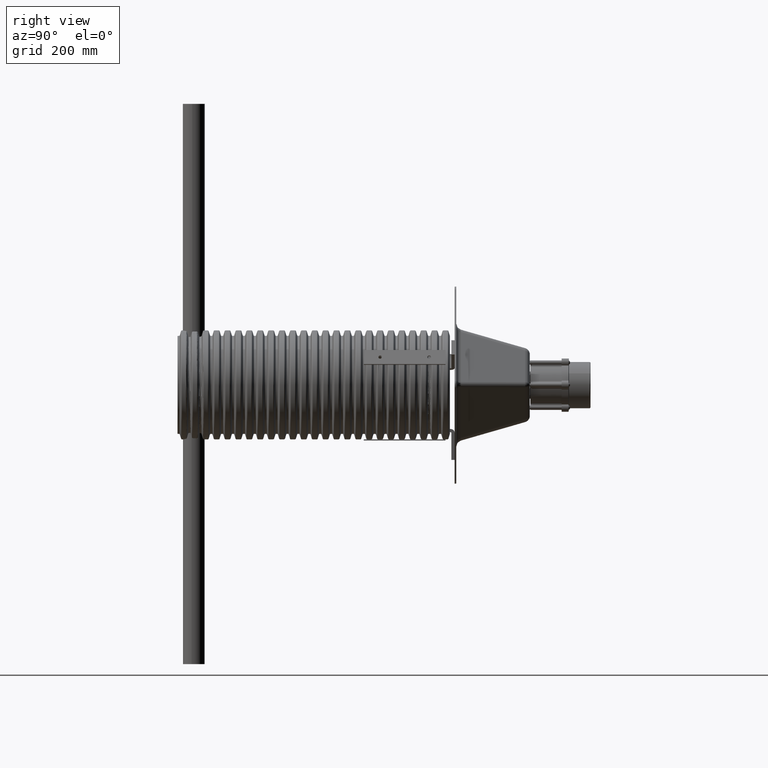
[diagram: clean part render]
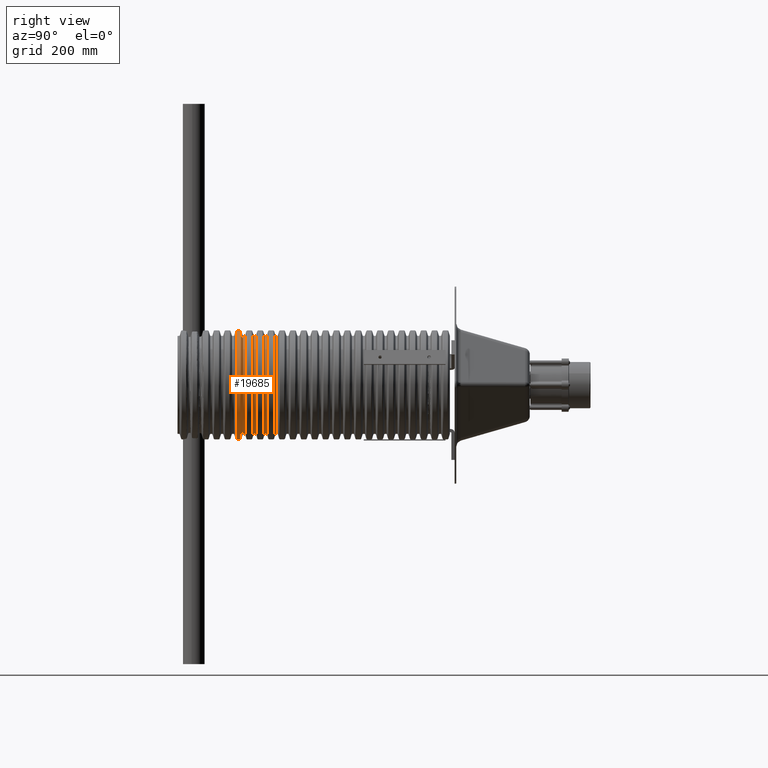
[diagram: same view with one face highlighted and labeled with its STEP entity id]
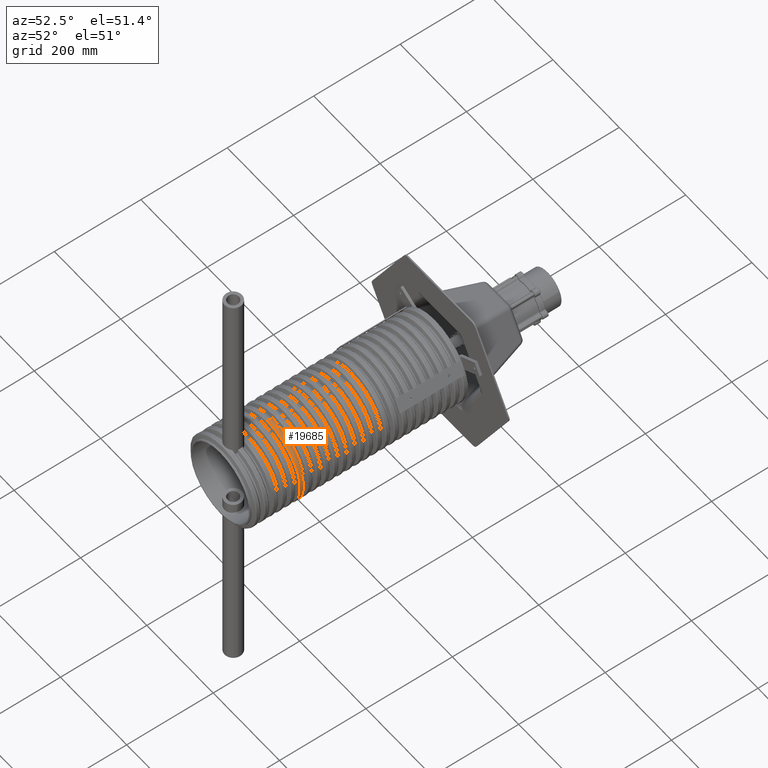
[diagram: same view with one face highlighted and labeled with its STEP entity id]
A machine part, right view. The second image highlights one B-rep face of the part: STEP entity #19685.
A second angle (auxiliary view) of the same face is appended — the face is thin or edge-on in the first view.
In plain terms, the highlighted cylindrical surface (partial cylindrical patch) has radius 100 mm, axis along (0, 1, 0).
Its self-contained STEP definition (entity closure, byte-faithful):
#300 = CARTESIAN_POINT ( 'NONE',  ( 1.224646799147402000E-014, -384.4880613009359500, -100.0000000000039800 ) ) ;
#1280 = FACE_OUTER_BOUND ( 'NONE', #34609, .T. ) ;
#4495 = ORIENTED_EDGE ( 'NONE', *, *, #18619, .T. ) ;
#4558 = CARTESIAN_POINT ( 'NONE',  ( 0.0000000000000000000, 0.0000000000000000000, 0.0000000000000000000 ) ) ;
#4770 = DIRECTION ( 'NONE',  ( -0.0000000000000000000, 1.000000000000000000, -0.0000000000000000000 ) ) ;
#5011 = DIRECTION ( 'NONE',  ( -0.0000000000000000000, 1.000000000000000000, -0.0000000000000000000 ) ) ;
#5090 = VERTEX_POINT ( 'NONE', #300 ) ;
#5158 = DIRECTION ( 'NONE',  ( -0.0000000000000000000, 1.000000000000000000, -0.0000000000000000000 ) ) ;
#8152 = AXIS2_PLACEMENT_3D ( 'NONE', #42781, #42770, #42726 ) ;
#8671 = CYLINDRICAL_SURFACE ( 'NONE', #12132, 100.0000000000039800 ) ;
#8739 = CIRCLE ( 'NONE', #8152, 100.0000000000039800 ) ;
#11256 = EDGE_CURVE ( 'NONE', #36556, #5090, #8739, .T. ) ;
#12132 = AXIS2_PLACEMENT_3D ( 'NONE', #4558, #4770, #34245 ) ;
#18519 = ORIENTED_EDGE ( 'NONE', *, *, #35808, .F. ) ;
#18619 = EDGE_CURVE ( 'NONE', #43825, #5090, #31170, .T. ) ;
#18941 = CARTESIAN_POINT ( 'NONE',  ( 0.0000000000000000000, -391.5119386984405900, 100.0000000000040600 ) ) ;
#19685 = ADVANCED_FACE ( 'NONE', ( #1280 ), #8671, .T. ) ;
#19994 = CARTESIAN_POINT ( 'NONE',  ( 1.224646799147402800E-014, -391.5119386984405900, -100.0000000000040600 ) ) ;
#21774 = VECTOR ( 'NONE', #23034, 1000.000000000000000 ) ;
#23034 = DIRECTION ( 'NONE',  ( -0.0000000000000000000, 1.000000000000000000, -0.0000000000000000000 ) ) ;
#23043 = ORIENTED_EDGE ( 'NONE', *, *, #25578, .T. ) ;
#23106 = CARTESIAN_POINT ( 'NONE',  ( 1.224646799147402000E-014, 0.0000000000000000000, -100.0000000000039800 ) ) ;
#24742 = VECTOR ( 'NONE', #5011, 1000.000000000000000 ) ;
#25261 = ORIENTED_EDGE ( 'NONE', *, *, #11256, .F. ) ;
#25578 = EDGE_CURVE ( 'NONE', #36306, #43825, #42257, .T. ) ;
#26310 = CARTESIAN_POINT ( 'NONE',  ( 0.0000000000000000000, -384.4880613009359500, 100.0000000000039800 ) ) ;
#26627 = CARTESIAN_POINT ( 'NONE',  ( 0.0000000000000000000, 0.0000000000000000000, 100.0000000000039800 ) ) ;
#26766 = CARTESIAN_POINT ( 'NONE',  ( 0.0000000000000000000, -391.5119386984405900, 0.0000000000000000000 ) ) ;
#30308 = DIRECTION ( 'NONE',  ( 0.0000000000000000000, 0.0000000000000000000, 1.000000000000000000 ) ) ;
#31170 = LINE ( 'NONE', #23106, #21774 ) ;
#33772 = AXIS2_PLACEMENT_3D ( 'NONE', #26766, #5158, #30308 ) ;
#34103 = LINE ( 'NONE', #26627, #24742 ) ;
#34245 = DIRECTION ( 'NONE',  ( 0.0000000000000000000, 0.0000000000000000000, 1.000000000000000000 ) ) ;
#34609 = EDGE_LOOP ( 'NONE', ( #23043, #4495, #25261, #18519 ) ) ;
#35808 = EDGE_CURVE ( 'NONE', #36306, #36556, #34103, .T. ) ;
#36306 = VERTEX_POINT ( 'NONE', #18941 ) ;
#36556 = VERTEX_POINT ( 'NONE', #26310 ) ;
#42257 = CIRCLE ( 'NONE', #33772, 100.0000000000039600 ) ;
#42726 = DIRECTION ( 'NONE',  ( 0.0000000000000000000, 0.0000000000000000000, 1.000000000000000000 ) ) ;
#42770 = DIRECTION ( 'NONE',  ( -0.0000000000000000000, 1.000000000000000000, -0.0000000000000000000 ) ) ;
#42781 = CARTESIAN_POINT ( 'NONE',  ( 0.0000000000000000000, -384.4880613009359500, 0.0000000000000000000 ) ) ;
#43825 = VERTEX_POINT ( 'NONE', #19994 ) ;